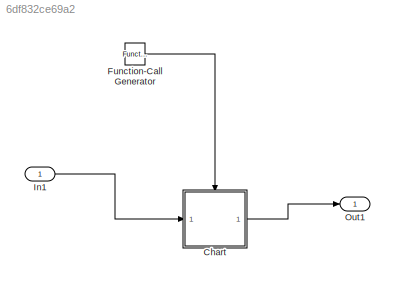
MODEL slx_6df832ce69a2
KIND model
CONFIG AbsTol = auto
CONFIG EnableMultiTasking = off
CONFIG FixedStep = auto
CONFIG MaxStep = auto
CONFIG MinStep = auto
CONFIG RelTol = 1e-3
CONFIG SampleTimeConstraint = Unconstrained
CONFIG Solver = FixedStepDiscrete
CONFIG SolverName = FixedStepDiscrete
CONFIG StartTime = 0.0
CONFIG StopTime = 10.0
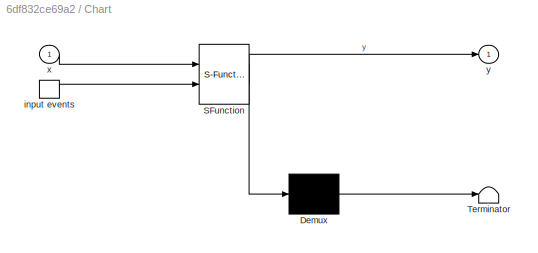
BLOCK [SubSystem] Chart
  ErrorFcn = Stateflow.Translate.translate
  PermitHierarchicalResolution = ExplicitOnly
  Ports = [1, 1, 0, 1]
  RequestExecContextInheritance = off
  SFBlockType = Chart
  TreatAsAtomicUnit = on
  Variant = off
BLOCK [Demux] Chart/ Demux 
  Outputs = 1
  Ports = [1, 1]
BLOCK [S-Function] Chart/ SFunction 
  EnableBusSupport = on
  FunctionName = sf_sfun
  PortCounts = [2 2]
  Ports = [2, 2]
  SFcnIsStateOwnerBlock = off
  SFunctionDeploymentMode = off
  Tag = Stateflow S-Function two_states_with_two_substates_variant_15 3
BLOCK [Terminator] Chart/ Terminator 
BLOCK [TriggerPort] Chart/input events
  Ports = [0, 1]
  ShowOutputPort = on
  StatesWhenEnabling = held
  TriggerType = function-call
  VariantControl = (inherit)
BLOCK [Inport] Chart/x
  IconDisplay = Port number
BLOCK [Outport] Chart/y
  IconDisplay = Port number
BLOCK [Reference] Function-Call Generator  REF=simulink/Ports &
Subsystems/Function-Call
Generator
  Ports = [0, 1]
  SourceBlock = simulink/Ports &\nSubsystems/Function-Call\nGenerator
  SourceProductBaseCode = SL
  SourceProductName = Simulink
  SourceType = Function-Call Generator
BLOCK [Inport] In1
  IconDisplay = Port number
BLOCK [Outport] Out1
  IconDisplay = Port number
LINE Chart:1 -> Out1:1
LINE Function-Call Generator:1 -> Chart:trigger
LINE In1:1 -> Chart:1
CHART Chart states=15 transitions=16
  STATE_LABEL 'Big_Kitten'
  STATE_LABEL 'Spork\nentry: y = 4;'
  STATE_LABEL 'Kitten\nentry: y = 0;'
  STATE_LABEL 'Spud\nentry: y = 5;'
  STATE_LABEL 'Potato\nentry: y = 1;'
  STATE_LABEL 'Event_B'
  STATE_LABEL 'Event_B'
  STATE_LABEL 'Event_B'
  STATE_LABEL 'Spork\nentry: y = 4;'
  STATE_LABEL 'Kitten\nentry: y = 0;'
  STATE_LABEL 'Spud\nentry: y = 5;'
  STATE_LABEL 'Potato\nentry: y = 1;'
  STATE_LABEL 'Big_Potato'
  STATE_LABEL 'Tango\nentry: y = x - 1;'
  STATE_LABEL 'Fish\nentry: y = 2;'
  STATE_LABEL 'Mango\nentry: y = x + 1;'
  STATE_LABEL 'Horse\nentry: y = x;'
  STATE_LABEL 'Lemon\nentry: y = -x;'
  STATE_LABEL 'Event_B [x == 1]'
  STATE_LABEL 'Event_B [x == 0]'
  STATE_LABEL 'Event_B [x < 0]'
  STATE_LABEL 'Event_B [x > 0]'
  STATE_LABEL 'Event_B'
  STATE_LABEL 'Tango\nentry: y = x - 1;'
  STATE_LABEL 'Fish\nentry: y = 2;'
  STATE_LABEL 'Mango\nentry: y = x + 1;'
  STATE_LABEL 'Horse\nentry: y = x;'
  STATE_LABEL 'Lemon\nentry: y = -x;'
  STATE_LABEL 'cyc = 35\nobj = 30\nlines = 27'
  STATE_LABEL 'Wibble'
  STATE_LABEL 'Wibble_A\nentry: y = 3;'
  STATE_LABEL 'Wibble_B\nentry: y = 4;'
  STATE_LABEL 'Event_B'
  STATE_LABEL 'Wibble_A\nentry: y = 3;'
  STATE_LABEL 'Wibble_B\nentry: y = 4;'
